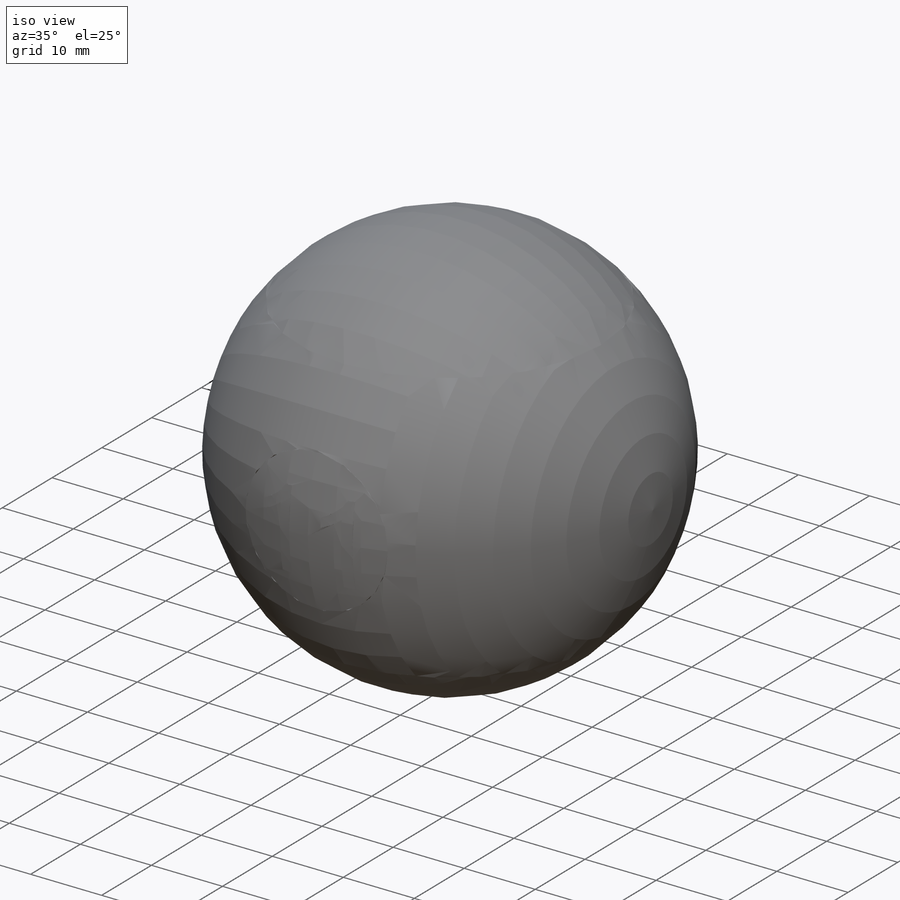
[diagram: iso view]
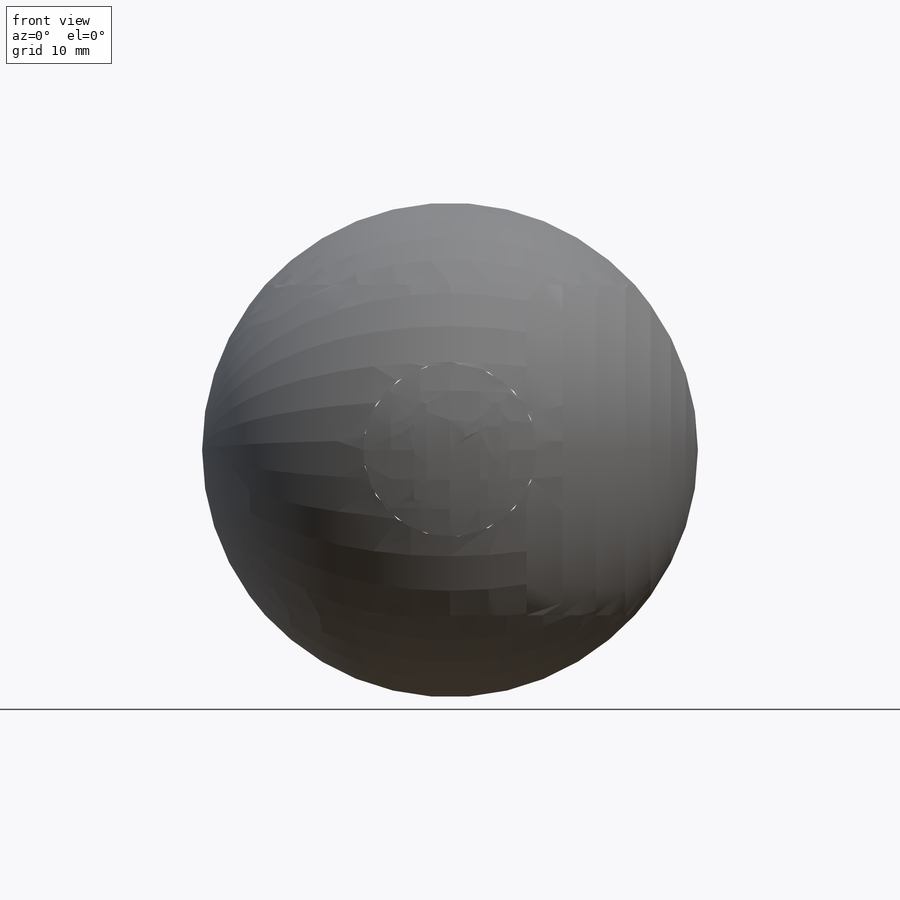
[diagram: front view]
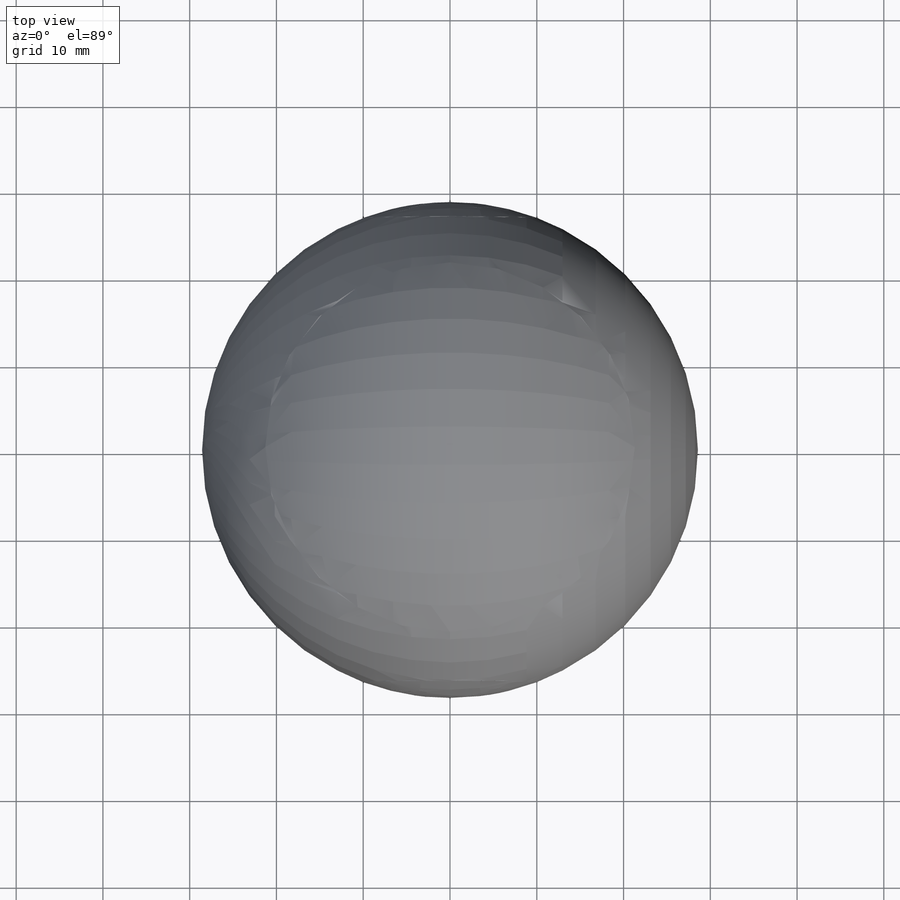
[diagram: top view]
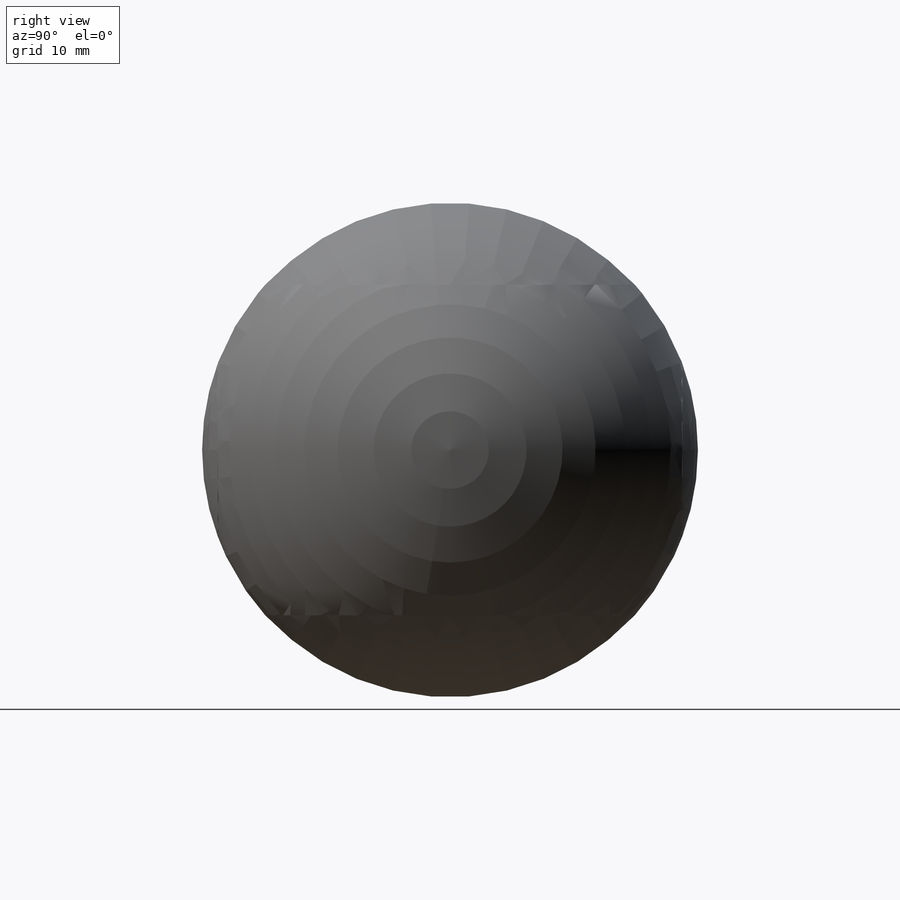
[diagram: right view]
SOLIDWORKS PART (.sldprt)
format: sldprt  version: not decoded by parser v0  size: 3,728,384 bytes
history: native  units: mm
features: sketch x20, extrude x17, pattern_circular x15, plane x3, material x1, revolve x1 (+24 scaffold rows collapsed; 15 parser-record rows omitted)
feature tree (96):
  scaffold x24  (default folders/planes/origin — collapsed)
  material  "Material <nicht festgelegt>"
  plane  "Vorne"
  plane  "Oben"
  plane  "Rechts"
  sketch  "Skizze1"  dims[D1=57.15mm]
  revolve  "Rotation1"  Angle=360deg
  sketch  "Skizze2"  dims[D1=20.0mm]
  sketch  "Skizze3"  dims[D1=38.1mm]
  sketch  "Skizze4"  dims[c1.D1=2.0mm c1.D2=10.0mm c2.D1=2.0mm c2.D2=16.0mm c2.D3=5.7mm c2.D4=20.0mm]
  parser-record x15  (decoder bookkeeping rows leaked as tree rows — omitted from the tree; the rows remain in map.json)
  extrude  "Linear austragen1"  Depth=0.01mm
  pattern_circular  "Kreismuster1"  Count=2 Angle=360deg
  sketch  "Skizze5"
  extrude  "Linear austragen2"  Depth=0.01mm
  pattern_circular  "Kreismuster2"  Count=2 Angle=360deg
  sketch  "Skizze6"
  extrude  "Linear austragen3"  Depth=0.01mm
  pattern_circular  "Kreismuster3"  Count=2 Angle=360deg
  sketch  "Skizze7"
  extrude  "Linear austragen4"  Depth=0.01mm
  pattern_circular  "Kreismuster5"  Count=2 Angle=360deg
  sketch  "Skizze8"
  extrude  "Linear austragen5"  Depth=0.01mm
  pattern_circular  "Kreismuster6"  Count=2 Angle=360deg
  sketch  "Skizze9"
  extrude  "Linear austragen6"  Depth=0.01mm
  sketch  "Skizze10"  dims[D1=4.0mm D2=4.5mm D3=6.0mm D4=2.3mm D5=0.15mm]
  extrude  "Linear austragen7"  Depth=0.01mm
  pattern_circular  "Kreismuster8"  Count=2 Angle=360deg
  sketch  "Skizze11"
  extrude  "Linear austragen8"  Depth=0.01mm
  pattern_circular  "Kreismuster9"  Count=2 Angle=360deg
  sketch  "Skizze12"
  extrude  "Linear austragen9"  Depth=0.01mm
  pattern_circular  "Kreismuster11"  Count=2 Angle=360deg
  sketch  "Skizze13"
  extrude  "Linear austragen10"  Depth=0.01mm
  sketch  "Skizze14"  dims[c1.D1=4.0mm c1.D2=4.5mm c1.D3=6.0mm c1.D4=2.3mm c1.D5=0.15mm c2.D4=0.35mm c2.D5=2.3mm]
  extrude  "Linear austragen11"  Depth=0.01mm
  pattern_circular  "Kreismuster12"  Count=2 Angle=360deg
  sketch  "Skizze15"
  extrude  "Linear austragen12"  Depth=0.01mm
  pattern_circular  "Kreismuster13"  Count=2 Angle=360deg
  sketch  "Skizze16"
  extrude  "Linear austragen13"  Depth=0.01mm
  pattern_circular  "Kreismuster14"  Count=2 Angle=360deg
  sketch  "Skizze17"
  extrude  "Linear austragen14"  Depth=0.01mm
  pattern_circular  "Kreismuster15"  Count=2 Angle=360deg
  sketch  "Skizze18"
  extrude  "Linear austragen15"  Depth=0.01mm
  pattern_circular  "Kreismuster16"  Count=2 Angle=360deg
  sketch  "Skizze19"
  extrude  "Linear austragen16"  Depth=0.01mm
  pattern_circular  "Kreismuster17"  Count=2 Angle=360deg
  sketch  "Skizze20"
  extrude  "Linear austragen17"  Depth=0.01mm
  pattern_circular  "Kreismuster18"  Count=2 Angle=360deg
decode coverage: 39 of 53 modeling features carry decoded parameters
note: suppression state not decoded; provenance and decode notes live in map.json
